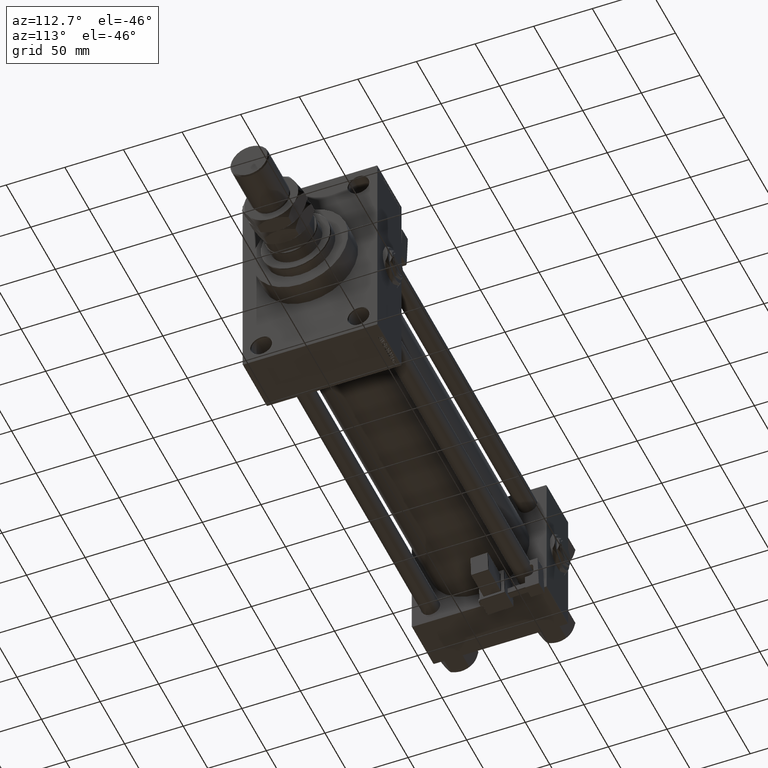
[diagram: clean part render]
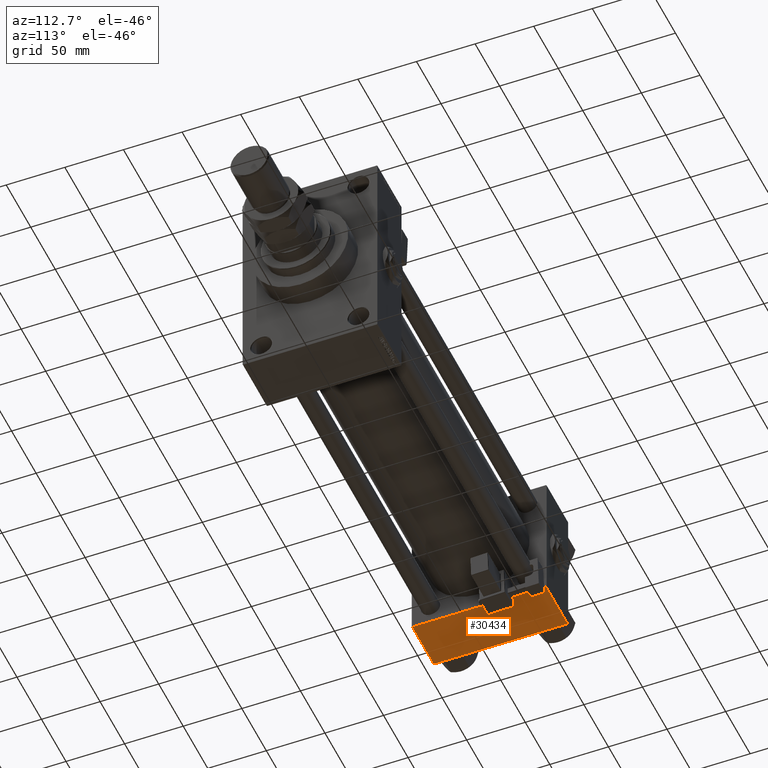
[diagram: same view with one face highlighted and labeled with its STEP entity id]
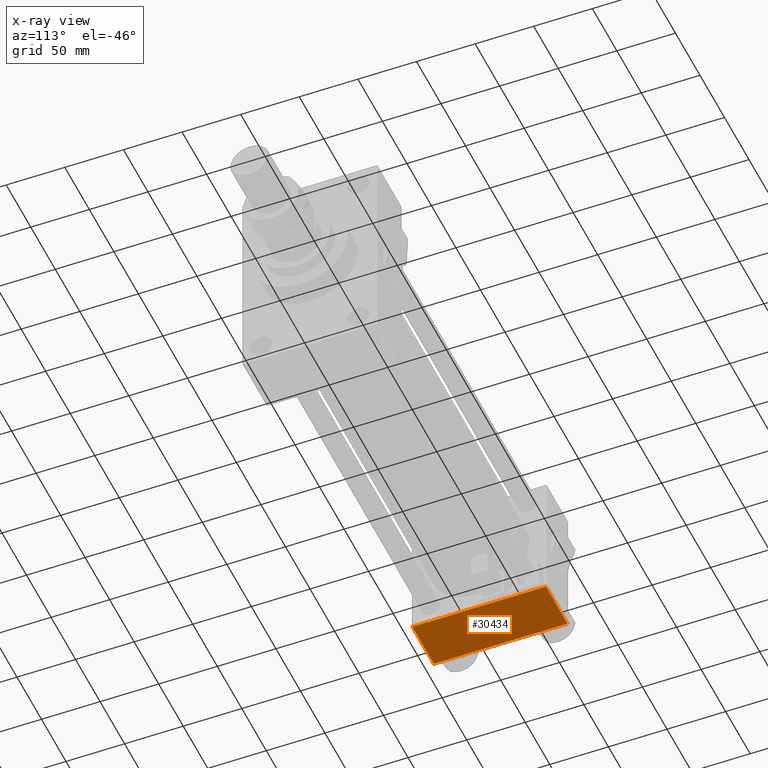
[diagram: x-ray of the same camera — body ghosted, the highlighted face saturated]
A machine part, auxiliary view. The second image highlights one B-rep face of the part: STEP entity #30434.
The next image is the same camera in x-ray: the body ghosted, the highlighted face saturated — about 0% of this face is hidden behind the body in this view.
In plain terms, the highlighted planar face has unit normal (0, 0, -1).
Its self-contained STEP definition (entity closure, byte-faithful):
#4308 = LINE ( 'NONE', #12963, #41026 ) ;
#5205 = DIRECTION ( 'NONE',  ( -1.000000000000000000, 0.000000000000000000, 0.000000000000000000 ) ) ;
#9424 = EDGE_CURVE ( 'NONE', #47409, #41937, #38310, .T. ) ;
#12425 = CARTESIAN_POINT ( 'NONE',  ( 44.00000000000000000, 57.49999999999999289, -57.49999999999999289 ) ) ;
#12963 = CARTESIAN_POINT ( 'NONE',  ( 0.000000000000000000, 57.49999999999999289, -57.49999999999999289 ) ) ;
#16764 = DIRECTION ( 'NONE',  ( 0.000000000000000000, 1.000000000000000000, 1.206764157201257045E-16 ) ) ;
#17428 = CARTESIAN_POINT ( 'NONE',  ( 44.00000000000000000, 57.49999999999999289, -57.49999999999999289 ) ) ;
#17811 = ORIENTED_EDGE ( 'NONE', *, *, #9424, .T. ) ;
#18543 = AXIS2_PLACEMENT_3D ( 'NONE', #12425, #33557, #16764 ) ;
#20518 = CARTESIAN_POINT ( 'NONE',  ( 44.00000000000000000, 57.00000000000002132, -57.49999999999999289 ) ) ;
#21324 = ORIENTED_EDGE ( 'NONE', *, *, #28242, .F. ) ;
#21412 = VERTEX_POINT ( 'NONE', #35721 ) ;
#21617 = CARTESIAN_POINT ( 'NONE',  ( 0.000000000000000000, 57.00000000000002132, -57.49999999999999289 ) ) ;
#24626 = PLANE ( 'NONE',  #18543 ) ;
#25027 = CARTESIAN_POINT ( 'NONE',  ( 44.00000000000000000, -57.00000000000000711, -57.50000000000000711 ) ) ;
#25485 = ORIENTED_EDGE ( 'NONE', *, *, #31345, .T. ) ;
#28242 = EDGE_CURVE ( 'NONE', #30642, #41937, #4308, .T. ) ;
#28928 = DIRECTION ( 'NONE',  ( 1.000000000000000000, 0.000000000000000000, 0.000000000000000000 ) ) ;
#29504 = DIRECTION ( 'NONE',  ( 0.000000000000000000, -1.000000000000000000, -1.206764157201257045E-16 ) ) ;
#29635 = DIRECTION ( 'NONE',  ( 0.000000000000000000, -1.000000000000000000, -1.206764157201257045E-16 ) ) ;
#29884 = CARTESIAN_POINT ( 'NONE',  ( 0.000000000000000000, -57.00000000000000711, -57.50000000000000711 ) ) ;
#30434 = ADVANCED_FACE ( 'NONE', ( #37924 ), #24626, .T. ) ;
#30642 = VERTEX_POINT ( 'NONE', #21617 ) ;
#30857 = VECTOR ( 'NONE', #28928, 1000.000000000000000 ) ;
#31345 = EDGE_CURVE ( 'NONE', #21412, #47409, #38059, .T. ) ;
#33557 = DIRECTION ( 'NONE',  ( 0.000000000000000000, 1.206764157201257045E-16, -1.000000000000000000 ) ) ;
#34998 = CARTESIAN_POINT ( 'NONE',  ( 0.000000000000000000, -57.00000000000000711, -57.50000000000000711 ) ) ;
#35721 = CARTESIAN_POINT ( 'NONE',  ( 44.00000000000000000, 57.00000000000002132, -57.49999999999999289 ) ) ;
#36468 = VECTOR ( 'NONE', #5205, 1000.000000000000000 ) ;
#36766 = EDGE_CURVE ( 'NONE', #30642, #21412, #45236, .T. ) ;
#37924 = FACE_OUTER_BOUND ( 'NONE', #40803, .T. ) ;
#38059 = LINE ( 'NONE', #17428, #42037 ) ;
#38310 = LINE ( 'NONE', #29884, #36468 ) ;
#40803 = EDGE_LOOP ( 'NONE', ( #21324, #44587, #25485, #17811 ) ) ;
#41026 = VECTOR ( 'NONE', #29504, 1000.000000000000000 ) ;
#41937 = VERTEX_POINT ( 'NONE', #34998 ) ;
#42037 = VECTOR ( 'NONE', #29635, 1000.000000000000000 ) ;
#44587 = ORIENTED_EDGE ( 'NONE', *, *, #36766, .T. ) ;
#45236 = LINE ( 'NONE', #20518, #30857 ) ;
#47409 = VERTEX_POINT ( 'NONE', #25027 ) ;